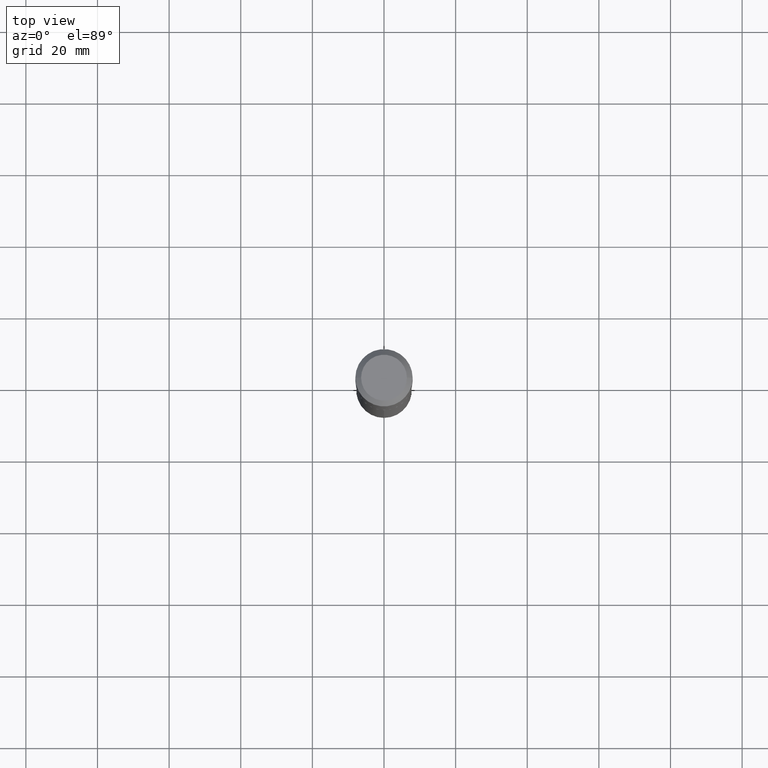
[diagram: clean part render]
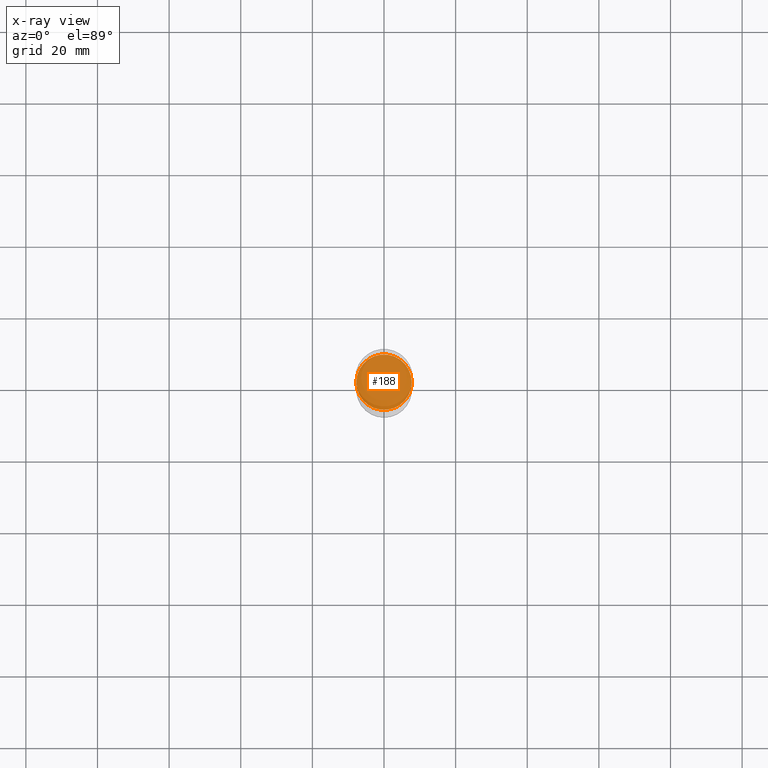
[diagram: x-ray — body ghosted, one internal face saturated and labeled with its STEP entity id]
A machine part, top view, then the same camera in x-ray: the body is ghosted and one INTERNAL B-rep face — a face not visible from any outside direction — is saturated and labeled: STEP entity #188.
In plain terms, the highlighted planar face has unit normal (-0, 0, 1).
Its self-contained STEP definition (entity closure, byte-faithful):
#29 = DIRECTION ( 'NONE',  ( 1.000000000000000000, -6.982962677686263555E-15, 0.000000000000000000 ) ) ;
#42 = EDGE_LOOP ( 'NONE', ( #114, #385 ) ) ;
#57 = FACE_OUTER_BOUND ( 'NONE', #42, .T. ) ;
#82 = VERTEX_POINT ( 'NONE', #474 ) ;
#94 = CIRCLE ( 'NONE', #311, 0.3045999999999999819 ) ;
#114 = ORIENTED_EDGE ( 'NONE', *, *, #281, .F. ) ;
#133 = CARTESIAN_POINT ( 'NONE',  ( 0.3045999999999999819, -1.243630738082539227E-14, -2.952700000000000546 ) ) ;
#174 = DIRECTION ( 'NONE',  ( -2.445468806185136597E-29, 3.491481338843145583E-15, 1.000000000000000000 ) ) ;
#188 = ADVANCED_FACE ( 'NONE', ( #57 ), #355, .F. ) ;
#202 = AXIS2_PLACEMENT_3D ( 'NONE', #400, #283, #203 ) ;
#203 = DIRECTION ( 'NONE',  ( 1.000000000000000000, -6.982962677686263555E-15, 0.000000000000000000 ) ) ;
#217 = CIRCLE ( 'NONE', #202, 0.3045999999999999819 ) ;
#226 = DIRECTION ( 'NONE',  ( -2.438088387897960049E-29, 3.491481338843145188E-15, 1.000000000000000000 ) ) ;
#281 = EDGE_CURVE ( 'NONE', #356, #82, #94, .T. ) ;
#283 = DIRECTION ( 'NONE',  ( -2.445468806185136597E-29, 3.491481338843145583E-15, 1.000000000000000000 ) ) ;
#308 = CARTESIAN_POINT ( 'NONE',  ( 7.220735744022853640E-29, -1.030929694920215659E-14, -2.952700000000000546 ) ) ;
#311 = AXIS2_PLACEMENT_3D ( 'NONE', #406, #174, #29 ) ;
#317 = DIRECTION ( 'NONE',  ( 1.000000000000000000, -6.982962677686265922E-15, 4.876176775795935793E-29 ) ) ;
#342 = AXIS2_PLACEMENT_3D ( 'NONE', #308, #226, #317 ) ;
#355 = PLANE ( 'NONE',  #342 ) ;
#356 = VERTEX_POINT ( 'NONE', #133 ) ;
#370 = EDGE_CURVE ( 'NONE', #82, #356, #217, .T. ) ;
#385 = ORIENTED_EDGE ( 'NONE', *, *, #370, .F. ) ;
#400 = CARTESIAN_POINT ( 'NONE',  ( 7.220735744022853640E-29, -1.030929694920215659E-14, -2.952700000000000546 ) ) ;
#406 = CARTESIAN_POINT ( 'NONE',  ( 7.220735744022853640E-29, -1.030929694920215659E-14, -2.952700000000000546 ) ) ;
#474 = CARTESIAN_POINT ( 'NONE',  ( -0.3045999999999999819, -8.142334548902781144E-15, -2.952700000000000546 ) ) ;